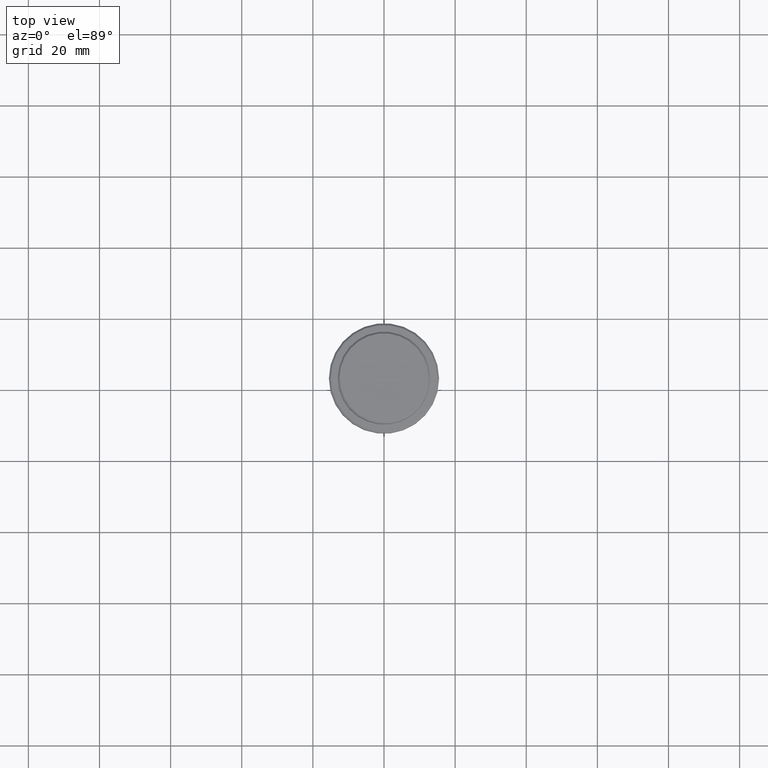
[diagram: clean part render]
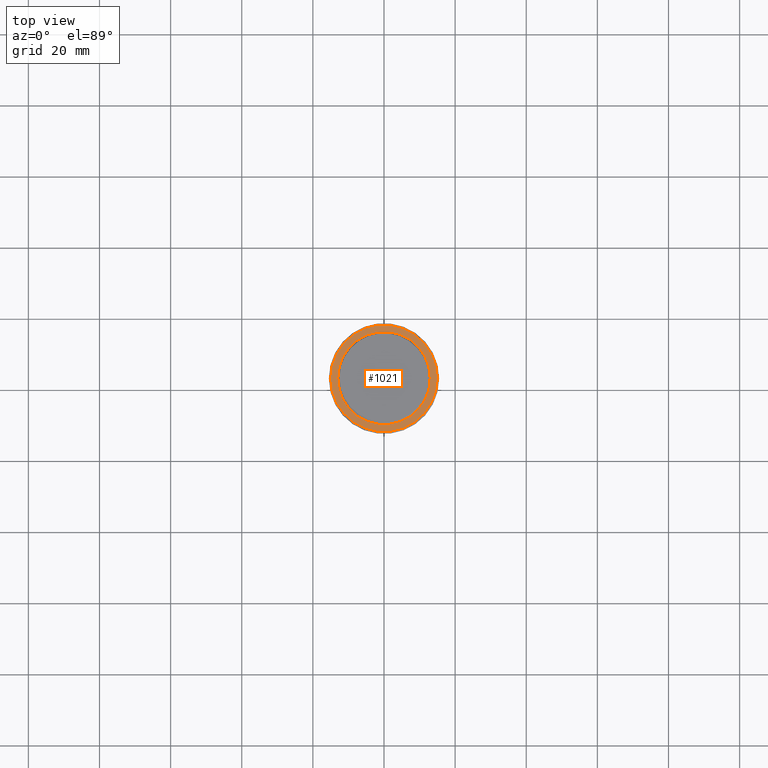
[diagram: same view with one face highlighted and labeled with its STEP entity id]
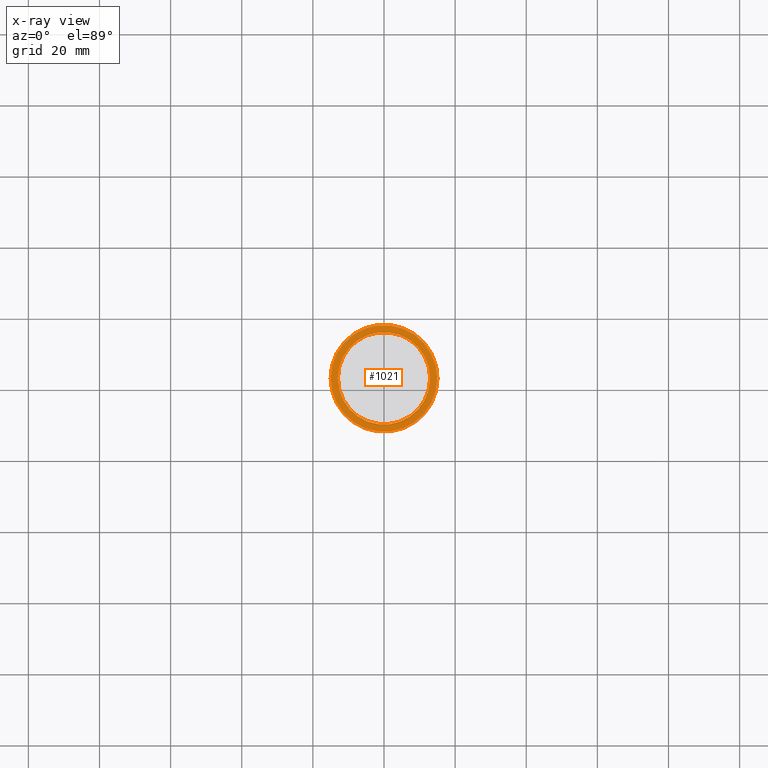
[diagram: x-ray of the same camera — body ghosted, the highlighted face saturated]
A machine part, top view. The second image highlights one B-rep face of the part: STEP entity #1021.
The next image is the same camera in x-ray: the body ghosted, the highlighted face saturated — about 0% of this face is hidden behind the body in this view.
In plain terms, the highlighted planar face has unit normal (0, -0, 1).
Its self-contained STEP definition (entity closure, byte-faithful):
#90 = CARTESIAN_POINT ( 'NONE',  ( -15.00000000000001421, 0.000000000000000000, -9.000000000000000000 ) ) ;
#98 = CARTESIAN_POINT ( 'NONE',  ( 15.00000000000001421, 1.867586368699714559E-15, -9.000000000000000000 ) ) ;
#129 = ORIENTED_EDGE ( 'NONE', *, *, #1306, .T. ) ;
#243 = DIRECTION ( 'NONE',  ( -0.000000000000000000, -0.000000000000000000, 1.000000000000000000 ) ) ;
#248 = VERTEX_POINT ( 'NONE', #1384 ) ;
#318 = DIRECTION ( 'NONE',  ( 1.000000000000000000, 0.000000000000000000, 0.000000000000000000 ) ) ;
#393 = EDGE_CURVE ( 'NONE', #584, #248, #1335, .T. ) ;
#394 = FACE_OUTER_BOUND ( 'NONE', #1143, .T. ) ;
#471 = AXIS2_PLACEMENT_3D ( 'NONE', #1296, #1301, #647 ) ;
#485 = DIRECTION ( 'NONE',  ( 1.000000000000000000, 0.000000000000000000, 0.000000000000000000 ) ) ;
#528 = CARTESIAN_POINT ( 'NONE',  ( 0.000000000000000000, 12.49999999999999289, -9.000000000000000000 ) ) ;
#573 = ORIENTED_EDGE ( 'NONE', *, *, #1411, .T. ) ;
#584 = VERTEX_POINT ( 'NONE', #700 ) ;
#618 = CARTESIAN_POINT ( 'NONE',  ( 0.000000000000000000, 0.000000000000000000, -9.000000000000000000 ) ) ;
#636 = DIRECTION ( 'NONE',  ( 1.000000000000000000, 0.000000000000000000, 0.000000000000000000 ) ) ;
#647 = DIRECTION ( 'NONE',  ( 1.000000000000000000, 0.000000000000000000, 0.000000000000000000 ) ) ;
#650 = CIRCLE ( 'NONE', #763, 15.00000000000001421 ) ;
#696 = CIRCLE ( 'NONE', #966, 15.00000000000001421 ) ;
#700 = CARTESIAN_POINT ( 'NONE',  ( 12.99999999999999467, 0.000000000000000000, -9.000000000000000000 ) ) ;
#714 = EDGE_LOOP ( 'NONE', ( #1364, #1342 ) ) ;
#725 = VERTEX_POINT ( 'NONE', #90 ) ;
#746 = AXIS2_PLACEMENT_3D ( 'NONE', #528, #1402, #318 ) ;
#755 = FACE_BOUND ( 'NONE', #714, .T. ) ;
#763 = AXIS2_PLACEMENT_3D ( 'NONE', #802, #243, #485 ) ;
#802 = CARTESIAN_POINT ( 'NONE',  ( 0.000000000000000000, 0.000000000000000000, -9.000000000000000000 ) ) ;
#813 = EDGE_CURVE ( 'NONE', #248, #584, #885, .T. ) ;
#885 = CIRCLE ( 'NONE', #471, 12.99999999999999467 ) ;
#890 = CARTESIAN_POINT ( 'NONE',  ( 0.000000000000000000, 0.000000000000000000, -9.000000000000000000 ) ) ;
#966 = AXIS2_PLACEMENT_3D ( 'NONE', #618, #1041, #636 ) ;
#974 = DIRECTION ( 'NONE',  ( 1.000000000000000000, 0.000000000000000000, 0.000000000000000000 ) ) ;
#1021 = ADVANCED_FACE ( 'NONE', ( #394, #755 ), #1277, .T. ) ;
#1041 = DIRECTION ( 'NONE',  ( -0.000000000000000000, -0.000000000000000000, 1.000000000000000000 ) ) ;
#1130 = AXIS2_PLACEMENT_3D ( 'NONE', #890, #1307, #974 ) ;
#1143 = EDGE_LOOP ( 'NONE', ( #573, #129 ) ) ;
#1246 = VERTEX_POINT ( 'NONE', #98 ) ;
#1277 = PLANE ( 'NONE',  #746 ) ;
#1296 = CARTESIAN_POINT ( 'NONE',  ( 0.000000000000000000, 0.000000000000000000, -9.000000000000000000 ) ) ;
#1301 = DIRECTION ( 'NONE',  ( 0.000000000000000000, 0.000000000000000000, -1.000000000000000000 ) ) ;
#1306 = EDGE_CURVE ( 'NONE', #1246, #725, #650, .T. ) ;
#1307 = DIRECTION ( 'NONE',  ( 0.000000000000000000, 0.000000000000000000, -1.000000000000000000 ) ) ;
#1335 = CIRCLE ( 'NONE', #1130, 12.99999999999999467 ) ;
#1342 = ORIENTED_EDGE ( 'NONE', *, *, #813, .T. ) ;
#1364 = ORIENTED_EDGE ( 'NONE', *, *, #393, .T. ) ;
#1384 = CARTESIAN_POINT ( 'NONE',  ( -12.99999999999999467, 1.592040838891558504E-15, -9.000000000000000000 ) ) ;
#1402 = DIRECTION ( 'NONE',  ( 0.000000000000000000, -0.000000000000000000, 1.000000000000000000 ) ) ;
#1411 = EDGE_CURVE ( 'NONE', #725, #1246, #696, .T. ) ;